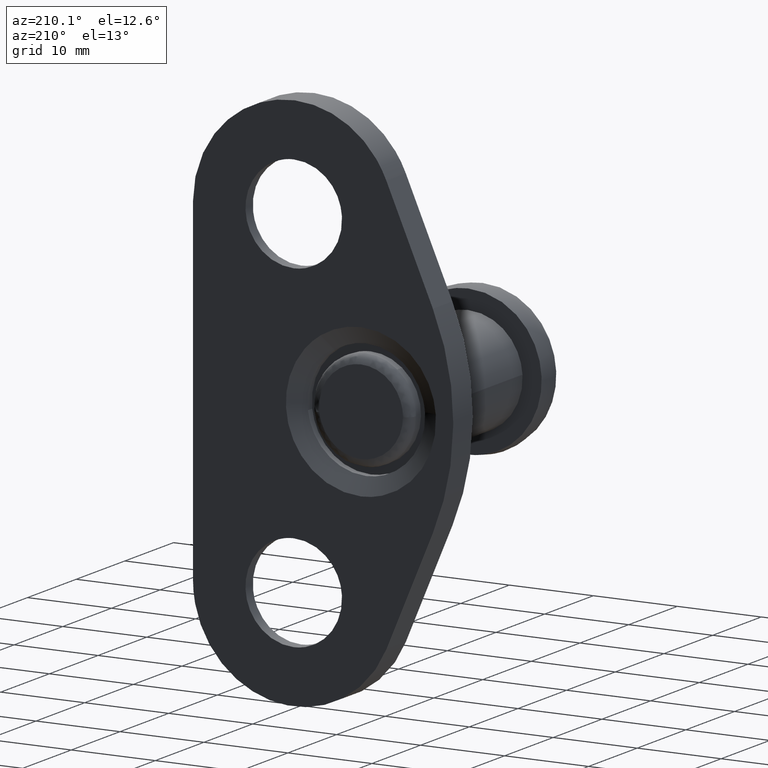
[diagram: clean part render]
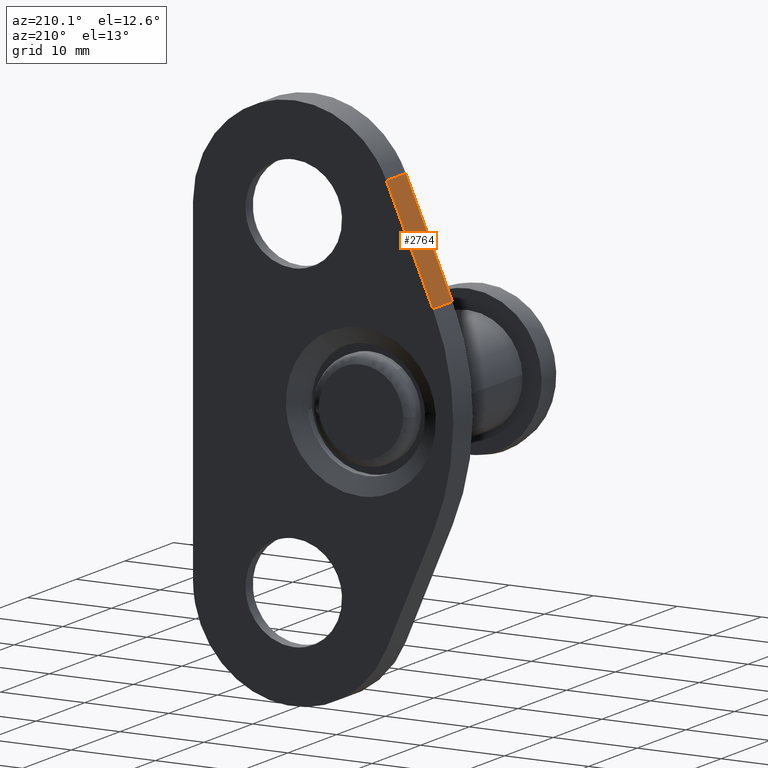
[diagram: same view with one face highlighted and labeled with its STEP entity id]
A machine part, auxiliary view. The second image highlights one B-rep face of the part: STEP entity #2764.
In plain terms, the highlighted face is a freeform B-spline surface patch.
Its self-contained STEP definition (entity closure, byte-faithful):
#2520=CARTESIAN_POINT('',(-3.026028000000000,25.0,24.735684999999901));
#2521=VERTEX_POINT('',#2520);
#2568=CARTESIAN_POINT('',(-8.565070000000109,25.0,11.839212000000000));
#2569=VERTEX_POINT('',#2568);
#2583=CARTESIAN_POINT('',(-3.026028000000000,25.0,24.735684999999901));
#2584=CARTESIAN_POINT('',(-8.565070000000109,25.0,11.839212000000000));
#2585=QUASI_UNIFORM_CURVE('',1,(#2583,#2584),.UNSPECIFIED.,.F.,.U.);
#2586=EDGE_CURVE('',#2521,#2569,#2585,.T.);
#2720=CARTESIAN_POINT('',(-8.565070000000109,21.0,11.839212000000000));
#2721=VERTEX_POINT('',#2720);
#2735=CARTESIAN_POINT('',(-8.565070000000109,21.0,11.839212000000000));
#2736=CARTESIAN_POINT('',(-8.565070000000109,25.0,11.839212000000000));
#2737=QUASI_UNIFORM_CURVE('',1,(#2735,#2736),.UNSPECIFIED.,.F.,.U.);
#2738=EDGE_CURVE('',#2721,#2569,#2737,.T.);
#2743=CARTESIAN_POINT('',(-2.749352726635392,20.800200007752771,25.379864118467360));
#2744=CARTESIAN_POINT('',(-8.841744877181560,20.800200007752771,11.195033803960181));
#2745=CARTESIAN_POINT('',(-2.749352726635392,25.199800099535580,25.379864118467360));
#2746=CARTESIAN_POINT('',(-8.841744877181560,25.199800099535580,11.195033803960181));
#2747=B_SPLINE_SURFACE_WITH_KNOTS('',1,1,((#2743,#2745),(#2744,#2746)),.UNSPECIFIED.,.F.,.F.,.U.,(2,2),(2,2),(0.0,15.437831880396891),(0.0,4.399600091782812),.UNSPECIFIED.);
#2748=ORIENTED_EDGE('',*,*,#2586,.T.);
#2749=ORIENTED_EDGE('',*,*,#2738,.F.);
#2750=CARTESIAN_POINT('',(-3.026028000000000,21.0,24.735684999999901));
#2751=VERTEX_POINT('',#2750);
#2752=CARTESIAN_POINT('',(-3.026028000000000,21.0,24.735684999999901));
#2753=CARTESIAN_POINT('',(-8.565070000000109,21.0,11.839212000000000));
#2754=QUASI_UNIFORM_CURVE('',1,(#2752,#2753),.UNSPECIFIED.,.F.,.U.);
#2755=EDGE_CURVE('',#2751,#2721,#2754,.T.);
#2756=ORIENTED_EDGE('',*,*,#2755,.F.);
#2757=CARTESIAN_POINT('',(-3.026028000000000,21.0,24.735684999999901));
#2758=CARTESIAN_POINT('',(-3.026028000000000,25.0,24.735684999999901));
#2759=QUASI_UNIFORM_CURVE('',1,(#2757,#2758),.UNSPECIFIED.,.F.,.U.);
#2760=EDGE_CURVE('',#2751,#2521,#2759,.T.);
#2761=ORIENTED_EDGE('',*,*,#2760,.T.);
#2762=EDGE_LOOP('',(#2748,#2749,#2756,#2761));
#2763=FACE_OUTER_BOUND('',#2762,.T.);
#2764=ADVANCED_FACE('',(#2763),#2747,.F.);